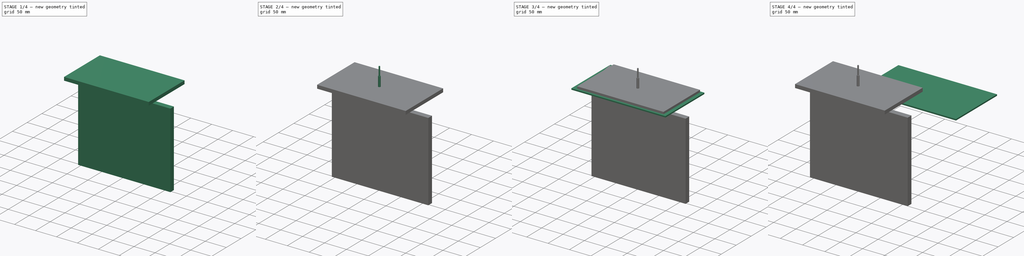
[diagram: build sequence overview — one tinted view per stage of 4, left to right]
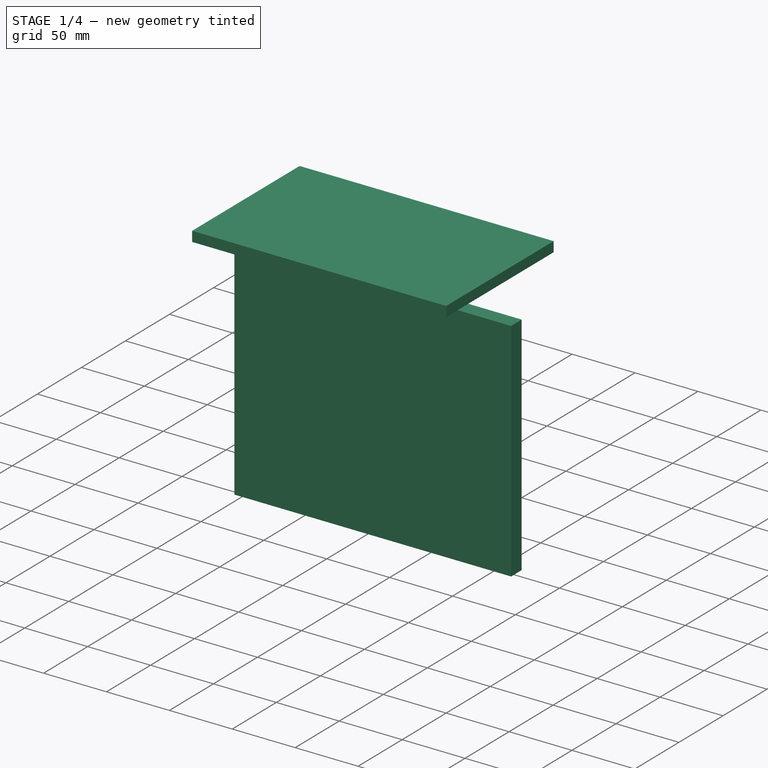
[diagram: stage 1 of 4 — iso view after this stage's code; geometry added in this stage tinted green]
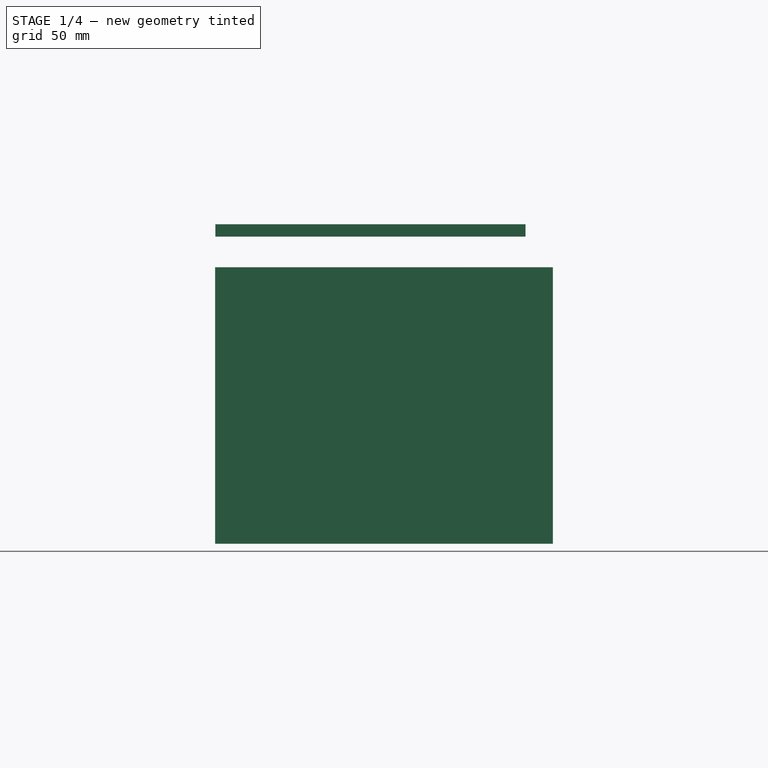
[diagram: stage 1 of 4 — front view after this stage's code; geometry added in this stage tinted green]
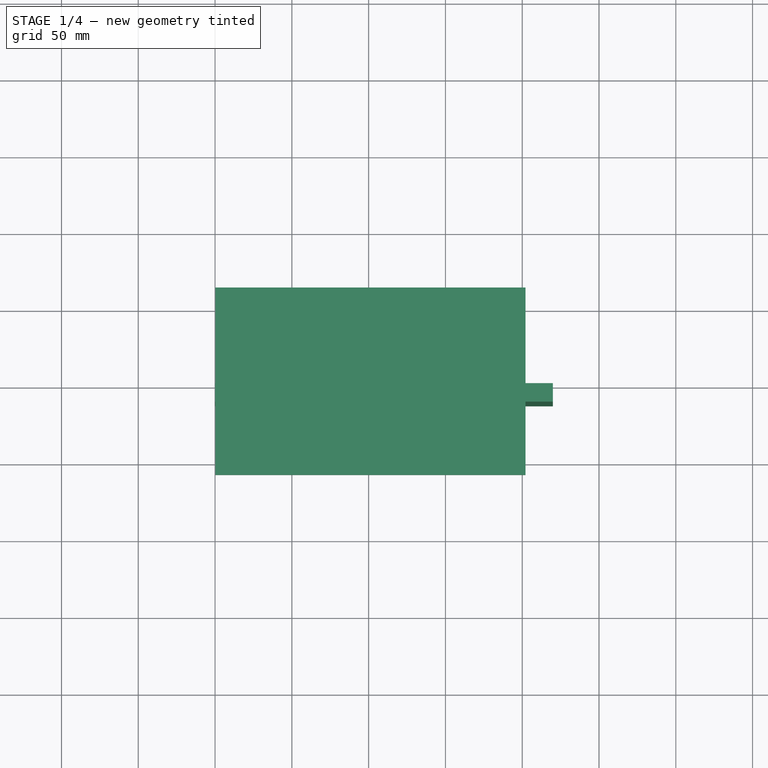
[diagram: stage 1 of 4 — top view after this stage's code; geometry added in this stage tinted green]
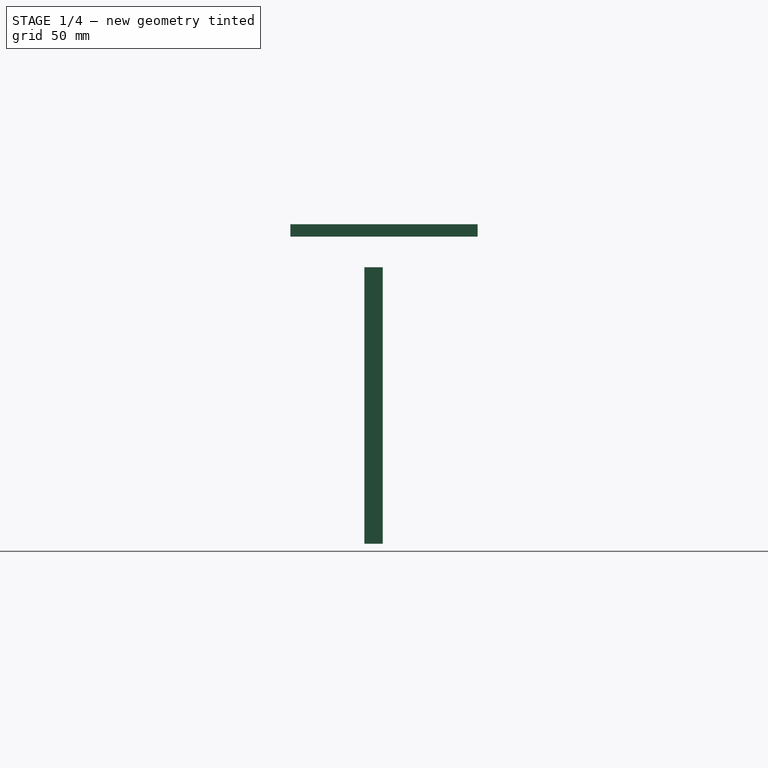
[diagram: stage 1 of 4 — right view after this stage's code; geometry added in this stage tinted green]
FCSTD DOCUMENT  (FreeCAD 0.19R24276 (Git))
Label: RD6006-Front
License: All rights reserved
LicenseURL: http://en.wikipedia.org/wiki/All_rights_reserved
objects: Sketcher::SketchObject×5, Part::FeaturePython×4, PartDesign::Pad×3, PartDesign::Body×3, Path::FeaturePython×3, PartDesign::Pocket×2, App::DocumentObjectGroup×2, App::MeasureDistance×2, Path::FeatureCompoundPython×1, App::FeaturePython×1
note: 22 computed .brp shape members not serialized (recipe doc carries the construction recipe); baked Part::Feature solids carry a one-line shape summary decoded from their .brp

FEATURE [Path::FeaturePython] TC__5mm_Endmill  label="TC: 3mm Endmill"  # Path/CAM operation (typed FeaturePython)
  HorizFeed = 0
  HorizRapid = 0
  SpindleDir = 0
  SpindleSpeed = 0
  Tool = -> ToolBit001
  ToolNumber = 1
  VertFeed = 0
  VertRapid = 0
  expr: HorizRapid = SetupSheet.HorizRapid
  expr: VertRapid = SetupSheet.VertRapid
FEATURE [App::DocumentObjectGroup] Tools
  Group = -> [TC__Default_Tool,TC__5mm_Endmill]
FEATURE [Path::FeaturePython] Job  # Path/CAM operation (typed FeaturePython)
  CycleTime = 00:00:00
  Fixtures = G54
  GeometryTolerance = 0.01
  Model = -> Model
  Operations = -> Operations
  OrderOutputBy = 0
  PostProcessor = 13
  SetupSheet = -> SetupSheet
  SplitOutput = false
  Stock = -> Stock
  Tools = -> Tools
FEATURE [Sketcher::SketchObject] Sketch003
  FullyConstrained = false
  MapMode = 5
  Placement = pos=(0,0,0) rot=(1,0,0;1.5708rad)
  Support = -> [XZ_Plane001]
  sketch-geometry (4):
    g0: LineSegment StartX=-100 StartY=-20 StartZ=0 EndX=120 EndY=-20 EndZ=0
    g1: LineSegment StartX=120 StartY=-20 StartZ=0 EndX=120 EndY=-200 EndZ=0
    g2: LineSegment StartX=120 StartY=-200 StartZ=0 EndX=-100 EndY=-200 EndZ=0
    g3: LineSegment StartX=-100 StartY=-200 StartZ=0 EndX=-100 EndY=-20 EndZ=0
  constraints (8):
    c: Coincident(g0,g1)
    c: Coincident(g1,g2)
    c: Coincident(g2,g3)
    c: Coincident(g3,g0)
    c: Horizontal(g0)
    c: Horizontal(g2)
    c: Vertical(g1)
    c: Vertical(g3)
FEATURE [PartDesign::Pad] Pad001
  Direction = (1,1,1)
  Length = 12
  Length2 = 100
  Placement = pos=(0,0,0) rot=(1,0,0;1.5708rad)
  Profile = -> Sketch003
  Type = 0
FEATURE [PartDesign::Body] Body001
  Group = -> [Sketch003,Pad001]
  Origin = -> Origin001
  Placement = pos=(-10,-61,46) rot=(0,0,1;0rad)
  Tip = -> Pad001
FEATURE [Sketcher::SketchObject] Sketch004
  FullyConstrained = false
  MapMode = 5
  Support = -> [XY_Plane002]
  sketch-geometry (4):
    g0: LineSegment StartX=-99.7927 StartY=-60.2143 StartZ=0 EndX=102.12 EndY=-60.2143 EndZ=0
    g1: LineSegment StartX=102.12 StartY=-60.2143 StartZ=0 EndX=102.12 EndY=61.7857 EndZ=0
    g2: LineSegment StartX=102.12 StartY=61.7857 StartZ=0 EndX=-99.7927 EndY=61.7857 EndZ=0
    g3: LineSegment StartX=-99.7927 StartY=61.7857 StartZ=0 EndX=-99.7927 EndY=-60.2143 EndZ=0
  constraints (9):
    c: Coincident(g0,g1)
    c: Coincident(g1,g2)
    c: Coincident(g2,g3)
    c: Coincident(g3,g0)
    c: Horizontal(g0)
    c: Horizontal(g2)
    c: Vertical(g1)
    c: Vertical(g3)
    c: DistanceY(g0,g1) = 122
FEATURE [PartDesign::Pad] Pad002
  Direction = (1,1,1)
  Length = 8
  Length2 = 100
  Profile = -> Sketch004
  Type = 0
FEATURE [PartDesign::Body] Body002
  Group = -> [Sketch004,Pad002]
  Origin = -> Origin002
  Placement = pos=(0,-1,-91) rot=(0,0,1;0rad)
  Tip = -> Pad002
FEATURE [App::MeasureDistance] Distance  label="Distance: 219,33 mm"
  Distance = 219.328
  P1 = (-109.327,-66.1387,26)
  P2 = (110,-66.462,26)
FEATURE [App::MeasureDistance] Distance001  label="Distance: 121,79 mm"
  Distance = 121.789
  P1 = (102.12,60.7857,-86.9609)
  P2 = (102.402,-61,-86.1828)
note: 2 file-system paths scrubbed to <path> (originals preserved in the JSON sidecar)
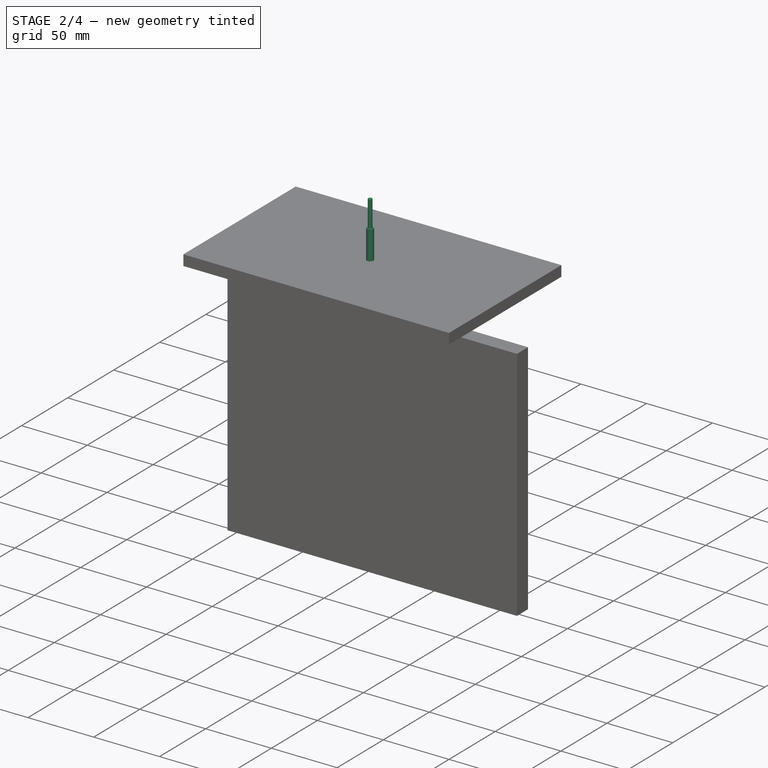
[diagram: stage 2 of 4 — iso view after this stage's code; geometry added in this stage tinted green]
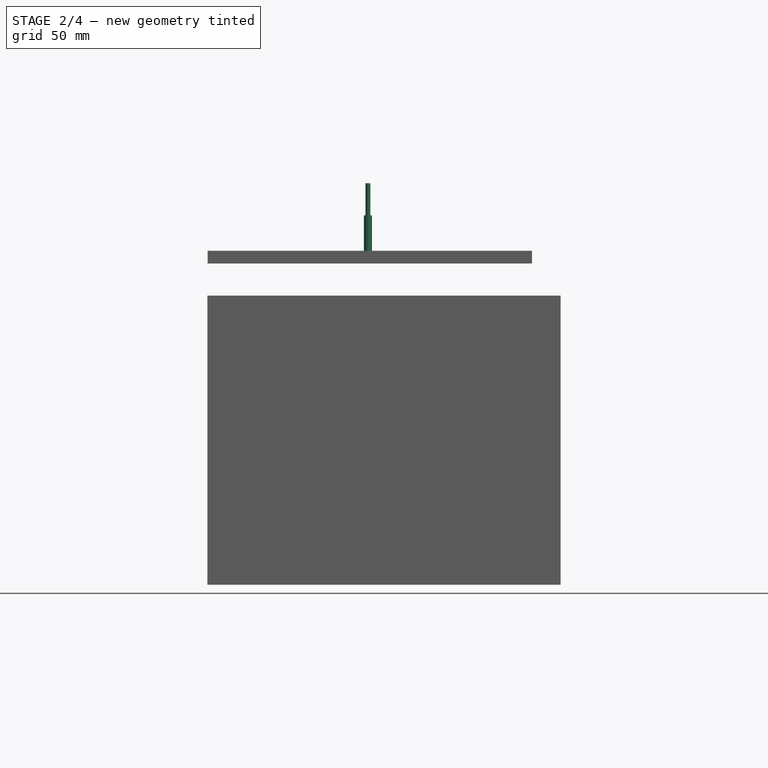
[diagram: stage 2 of 4 — front view after this stage's code; geometry added in this stage tinted green]
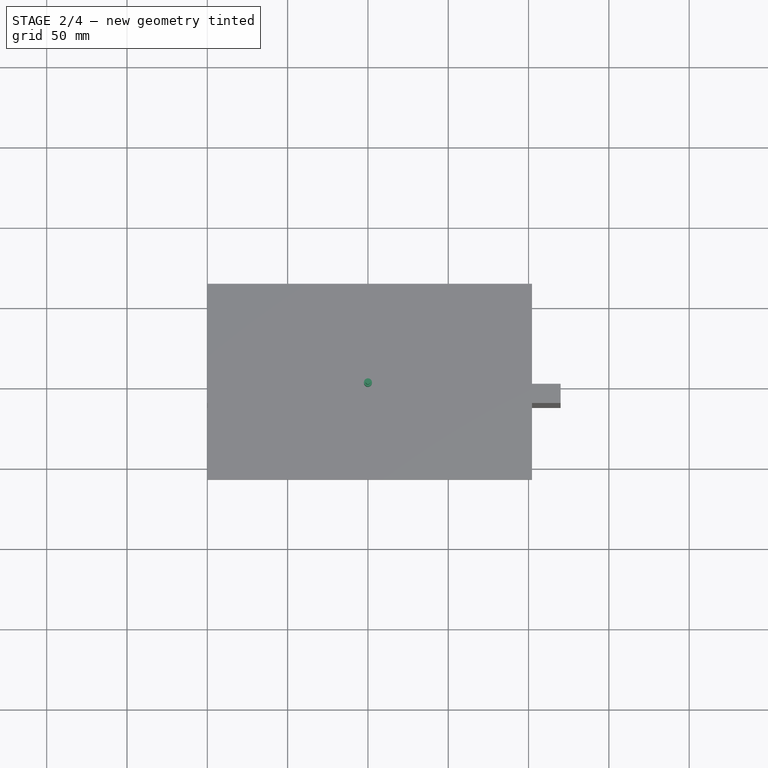
[diagram: stage 2 of 4 — top view after this stage's code; geometry added in this stage tinted green]
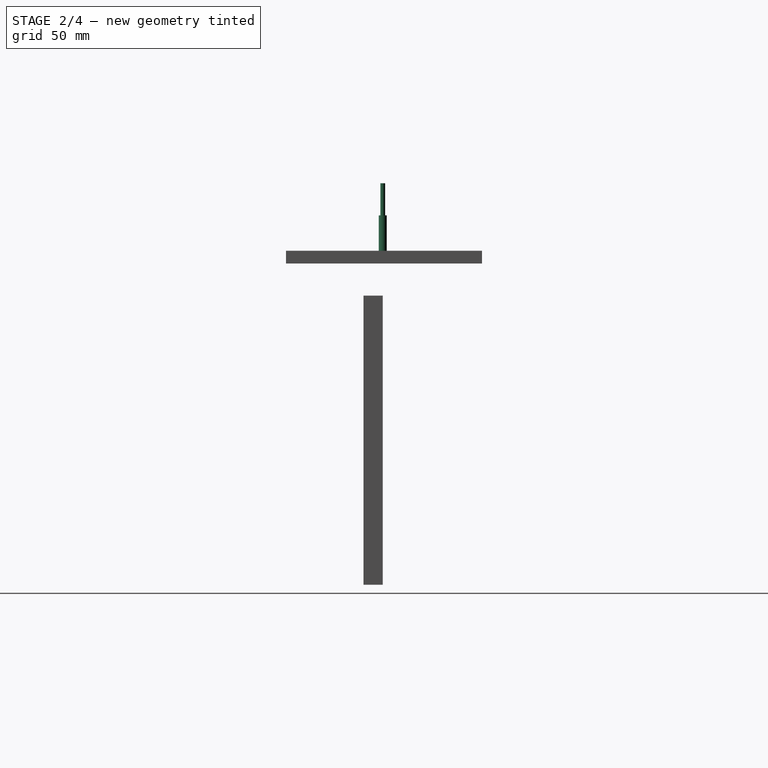
[diagram: stage 2 of 4 — right view after this stage's code; geometry added in this stage tinted green]
FEATURE [App::DocumentObjectGroup] Model
  Group = -> [Clone]
FEATURE [Part::FeaturePython] ToolBit  label="Endmill"  # Path/CAM toolbit (typed FeaturePython)
  BitPropertyNames = CuttingEdgeHeight | Diameter | Length | ShankDiameter
  BitShape = <path>
  CuttingEdgeHeight = 30
  Diameter = 5
  Length = 50
  ShankDiameter = 3
  ShapeName = endmill
FEATURE [Part::FeaturePython] ToolBit001  label="3mm Endmill"  # Path/CAM toolbit (typed FeaturePython)
  BitPropertyNames = CuttingEdgeHeight | Diameter | Length | ShankDiameter
  BitShape = <path>
  CuttingEdgeHeight = 30
  Diameter = 3
  File = <userpath>/.FreeCAD/Tools/Bit/5mm_Endmill.fctb
  Length = 50
  ShankDiameter = 3
  ShapeName = endmill
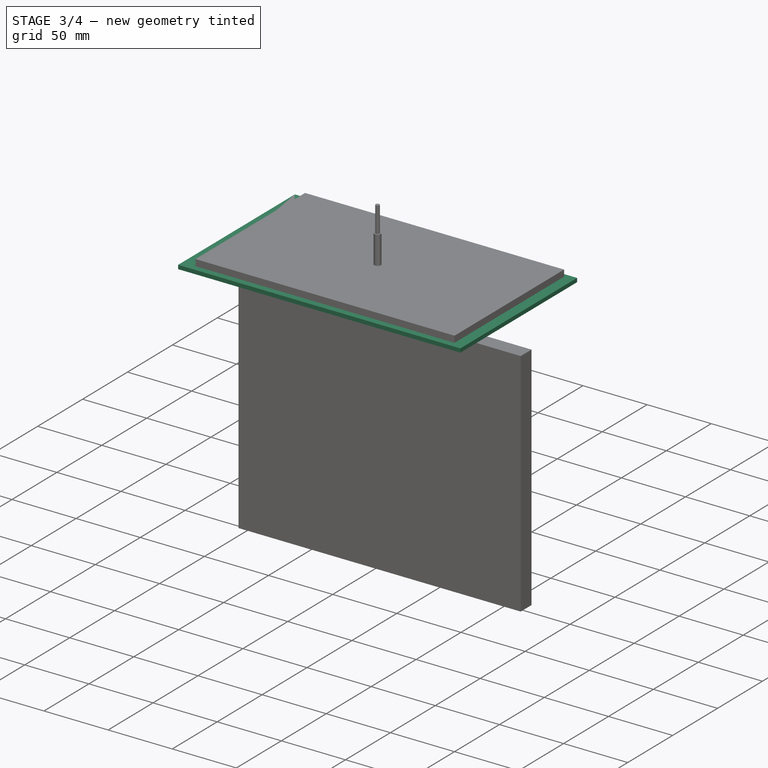
[diagram: stage 3 of 4 — iso view after this stage's code; geometry added in this stage tinted green]
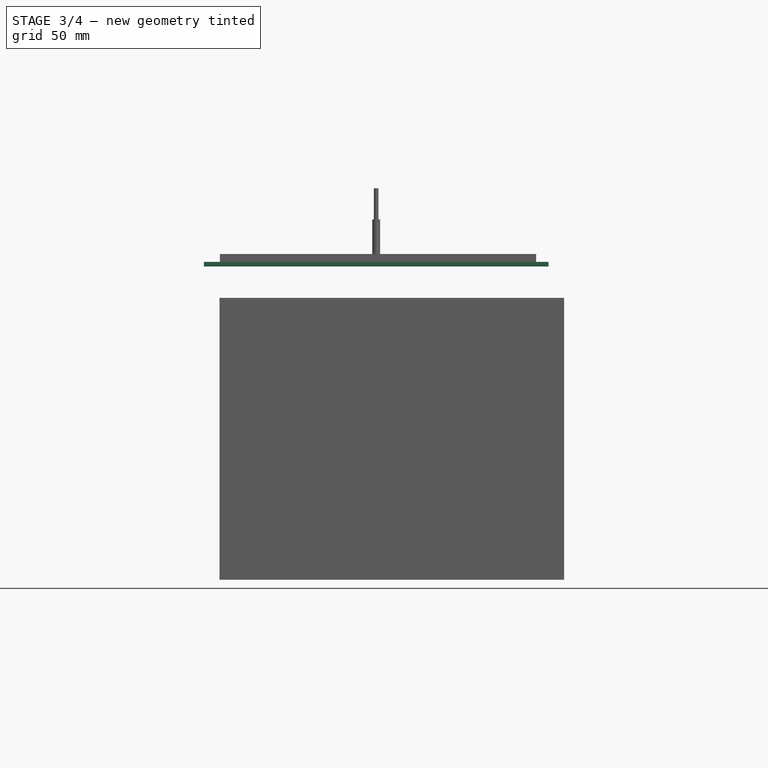
[diagram: stage 3 of 4 — front view after this stage's code; geometry added in this stage tinted green]
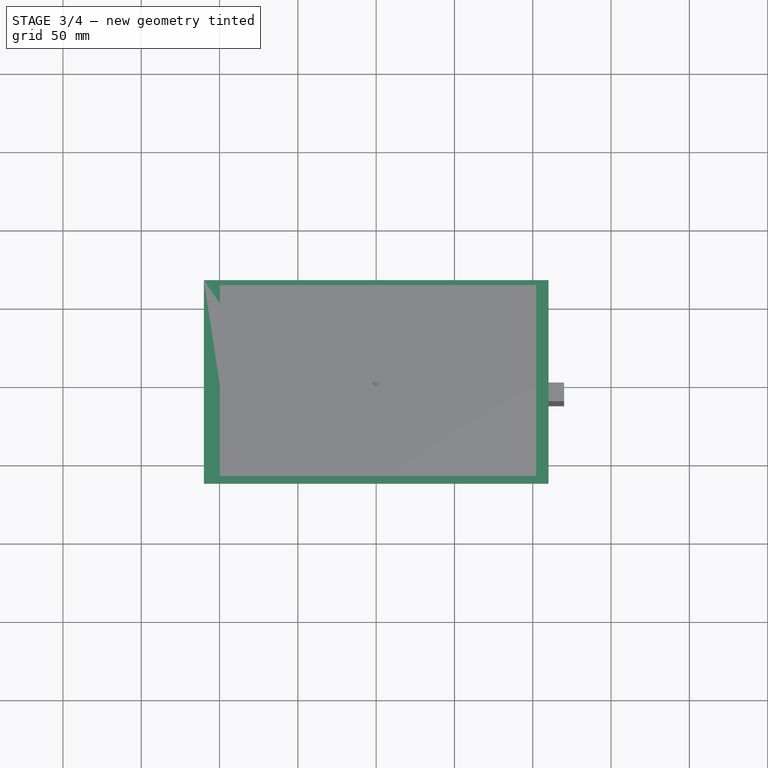
[diagram: stage 3 of 4 — top view after this stage's code; geometry added in this stage tinted green]
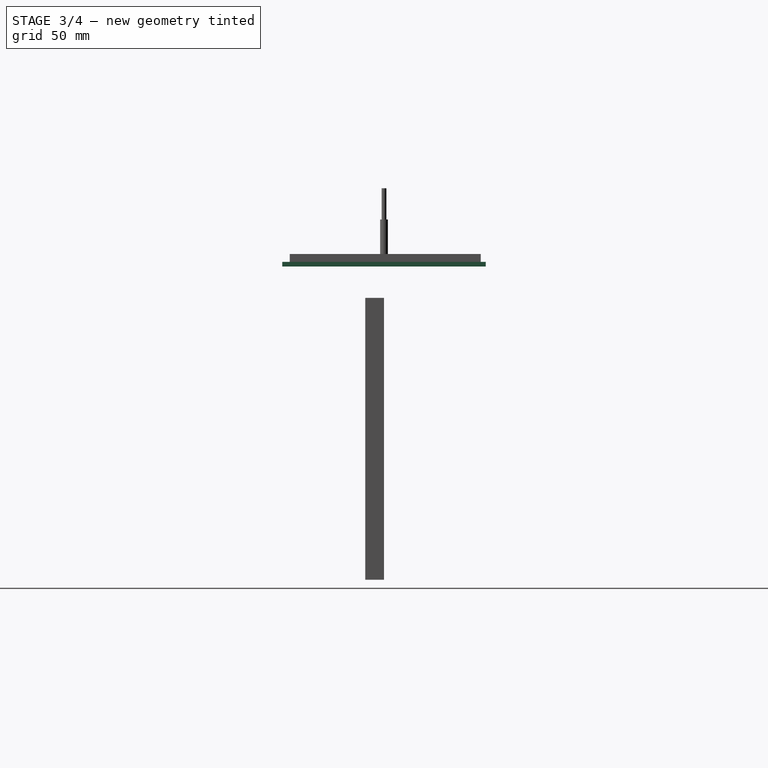
[diagram: stage 3 of 4 — right view after this stage's code; geometry added in this stage tinted green]
FEATURE [Sketcher::SketchObject] Sketch
  FullyConstrained = true
  MapMode = 5
  Support = -> [XY_Plane]
  sketch-geometry (4):
    g0: LineSegment StartX=-110 StartY=65 StartZ=0 EndX=110 EndY=65 EndZ=0
    g1: LineSegment StartX=110 StartY=65 StartZ=0 EndX=110 EndY=-65 EndZ=0
    g2: LineSegment StartX=110 StartY=-65 StartZ=0 EndX=-110 EndY=-65 EndZ=0
    g3: LineSegment StartX=-110 StartY=-65 StartZ=0 EndX=-110 EndY=65 EndZ=0
  constraints (11):
    c: Coincident(g0,g1)
    c: Coincident(g1,g2)
    c: Coincident(g2,g3)
    c: Coincident(g3,g0)
    c: Horizontal(g0)
    c: Horizontal(g2)
    c: Vertical(g1)
    c: Vertical(g3)
    c: Symmetric(g2,g0,g-1)
    c: DistanceX(g0,g-1) = 110
    c: DistanceY(g-1,g0) = 65
FEATURE [PartDesign::Pad] Pad
  Direction = (1,1,1)
  Length = 3
  Length2 = 100
  Profile = -> Sketch
  Type = 0
FEATURE [Sketcher::SketchObject] Sketch001
  FullyConstrained = true
  MapMode = 5
  Placement = pos=(0,0,3) rot=(0,0,1;0rad)
  Support = -> [Pad]
  sketch-geometry (4):
    g0: LineSegment StartX=-95 StartY=43 StartZ=0 EndX=67 EndY=43 EndZ=0
    g1: LineSegment StartX=67 StartY=43 StartZ=0 EndX=67 EndY=-34 EndZ=0
    g2: LineSegment StartX=67 StartY=-34 StartZ=0 EndX=-95 EndY=-34 EndZ=0
    g3: LineSegment StartX=-95 StartY=-34 StartZ=0 EndX=-95 EndY=43 EndZ=0
  constraints (12):
    c: Coincident(g0,g1)
    c: Coincident(g1,g2)
    c: Coincident(g2,g3)
    c: Coincident(g3,g0)
    c: Horizontal(g0)
    c: Horizontal(g2)
    c: Vertical(g1)
    c: Vertical(g3)
    c: DistanceX(g0,g0) = 162
    c: DistanceX(g0,g-1) = 95
    c: DistanceY(g1,g0) = 77
    c: DistanceY(g-1,g0) = 43
FEATURE [PartDesign::Pocket] Pocket  label="RD6006-Front"
  BaseFeature = -> Pad
  Length = 5
  Length2 = 100
  Profile = -> Sketch001
  Type = 1
FEATURE [Sketcher::SketchObject] Sketch002
  FullyConstrained = false
  MapMode = 5
  Placement = pos=(0,0,3) rot=(0,0,1;0rad)
  Support = -> [Pocket]
  sketch-geometry (4):
    g0: LineSegment StartX=77.6418 StartY=43 StartZ=0 EndX=90.6418 EndY=43 EndZ=0
    g1: LineSegment StartX=90.6418 StartY=43 StartZ=0 EndX=90.6418 EndY=16 EndZ=0
    g2: LineSegment StartX=90.6418 StartY=16 StartZ=0 EndX=77.6418 EndY=16 EndZ=0
    g3: LineSegment StartX=77.6418 StartY=16 StartZ=0 EndX=77.6418 EndY=43 EndZ=0
  constraints (11):
    c: Coincident(g0,g1)
    c: Coincident(g1,g2)
    c: Coincident(g2,g3)
    c: Coincident(g3,g0)
    c: Horizontal(g0)
    c: Horizontal(g2)
    c: Vertical(g1)
    c: Vertical(g3)
    c: DistanceX(g0,g0) = 13
    c: DistanceY(g1,g0) = 27
    c: DistanceY(g-1,g0) = 43
FEATURE [PartDesign::Pocket] Pocket001  label="Interrupteur"
  BaseFeature = -> Pocket
  Length = 5
  Length2 = 100
  Profile = -> Sketch002
  Type = 1
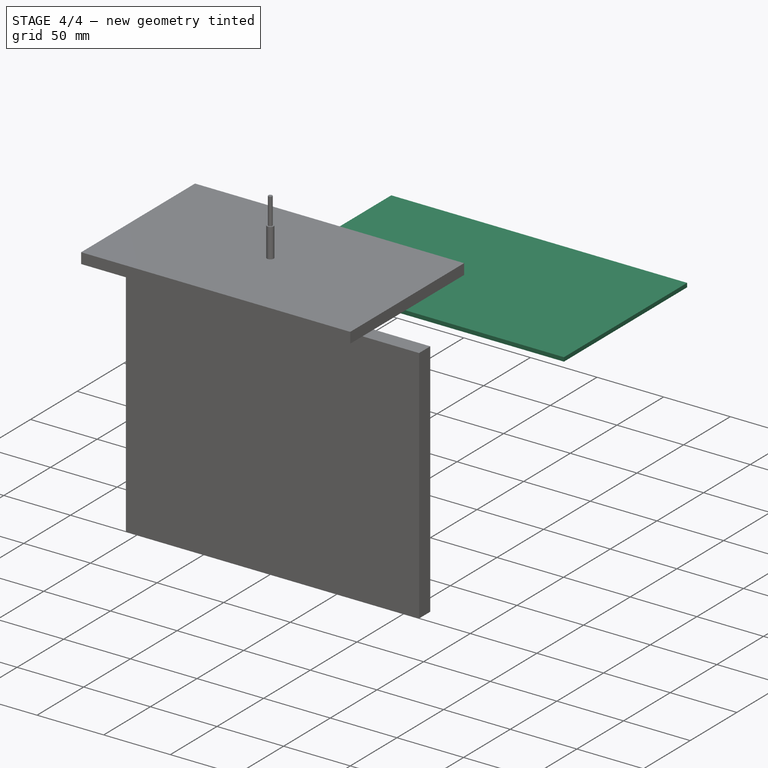
[diagram: stage 4 of 4 — iso view after this stage's code; geometry added in this stage tinted green]
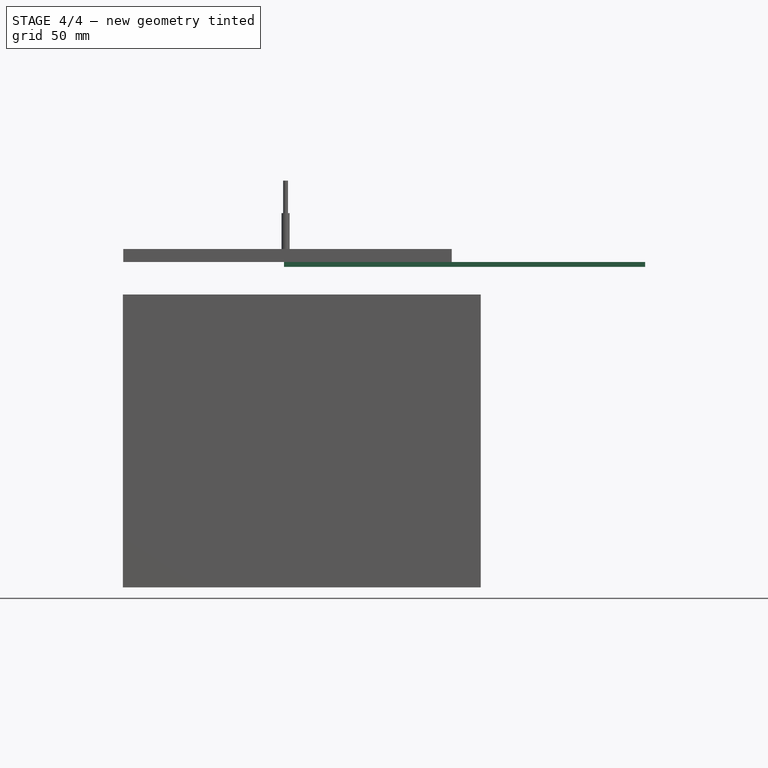
[diagram: stage 4 of 4 — front view after this stage's code; geometry added in this stage tinted green]
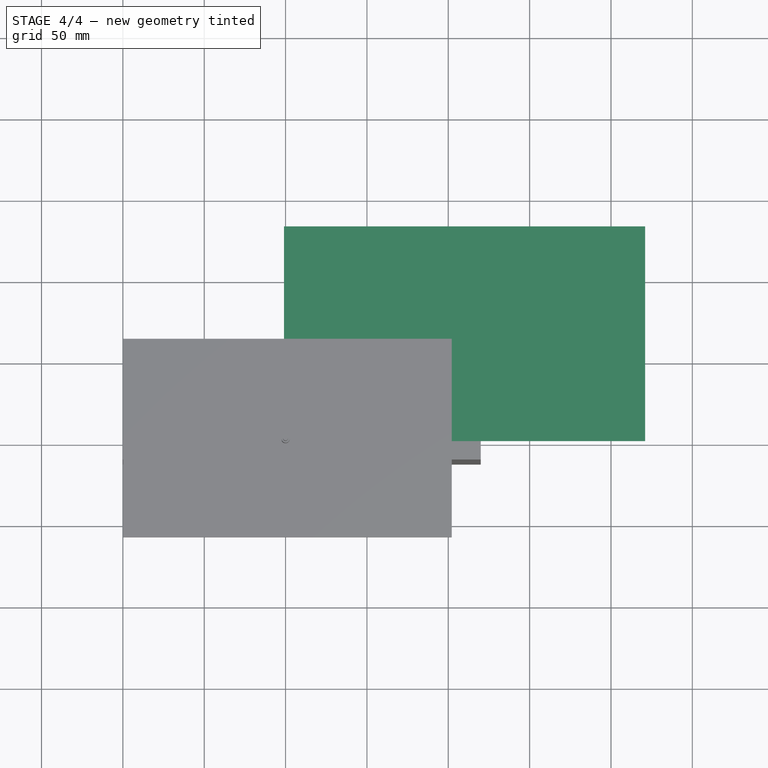
[diagram: stage 4 of 4 — top view after this stage's code; geometry added in this stage tinted green]
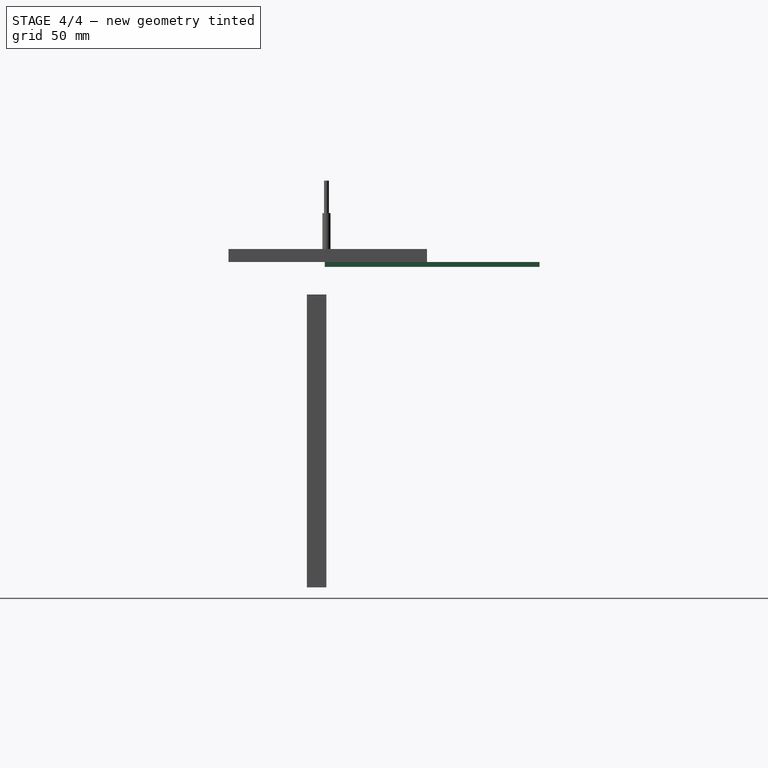
[diagram: stage 4 of 4 — right view after this stage's code; geometry added in this stage tinted green]
FEATURE [PartDesign::Body] Body
  Group = -> [Sketch,Pad,Sketch001,Pocket,Sketch002,Pocket001]
  Origin = -> Origin
  Placement = pos=(0,0,0) rot=(1,0,0;5.93412rad)
  Tip = -> Pocket001
FEATURE [Path::FeatureCompoundPython] Operations  # Path/CAM operation (typed FeaturePython)
  UsePlacements = false
FEATURE [App::FeaturePython] SetupSheet  # Path/CAM operation (typed FeaturePython)
  ClearanceHeightExpression = OpStockZMax+SetupSheet.ClearanceHeightOffset
  ClearanceHeightOffset = 5
  CoolantMode = 0
  CoolantModes = None | Flood | Mist
  FinalDepthExpression = OpFinalDepth
  HorizRapid = 0
  SafeHeightExpression = OpStockZMax+SetupSheet.SafeHeightOffset
  SafeHeightOffset = 3
  StartDepthExpression = OpStartDepth
  StepDownExpression = OpToolDiameter
  VertRapid = 0
FEATURE [Part::FeaturePython] Clone  label="Model-Body"  # Draft clone (typed FeaturePython)
  AttacherType = Attacher::AttachEngine3D
  Fuse = false
  Objects = -> [Body]
  PathResource = Model
  Placement = pos=(110,65,-3) rot=(0,0,1;0rad)
  Scale = (1,1,1)
FEATURE [Path::FeaturePython] TC__Default_Tool  label="TC: Default Tool"  # Path/CAM operation (typed FeaturePython)
  HorizFeed = 0
  HorizRapid = 0
  SpindleDir = 0
  SpindleSpeed = 0
  Tool = -> ToolBit
  ToolNumber = 1
  VertFeed = 0
  VertRapid = 0
  expr: HorizRapid = SetupSheet.HorizRapid
  expr: VertRapid = SetupSheet.VertRapid
FEATURE [Part::FeaturePython] Stock  # WARN: FeaturePython — macro-defined, semantics opaque (R4)
  Base = -> Model
  ExtXneg = 1
  ExtXpos = 1
  ExtYneg = 1
  ExtYpos = 1
  ExtZneg = 0
  ExtZpos = 0
  Placement = pos=(0,0,-3) rot=(0,0,1;0rad)
  StockType = FromBase
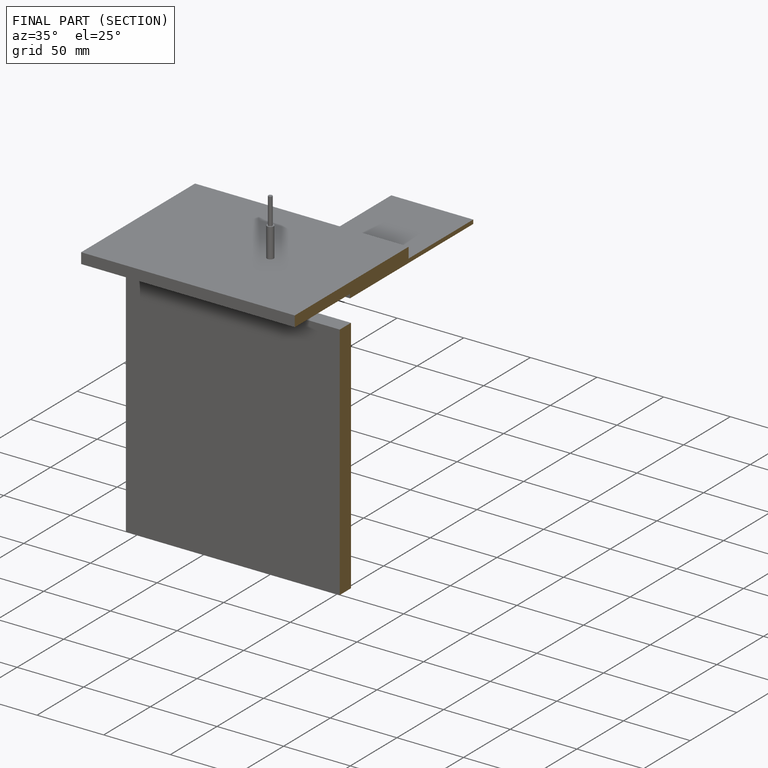
[diagram: finished part — half-section view (interior)]
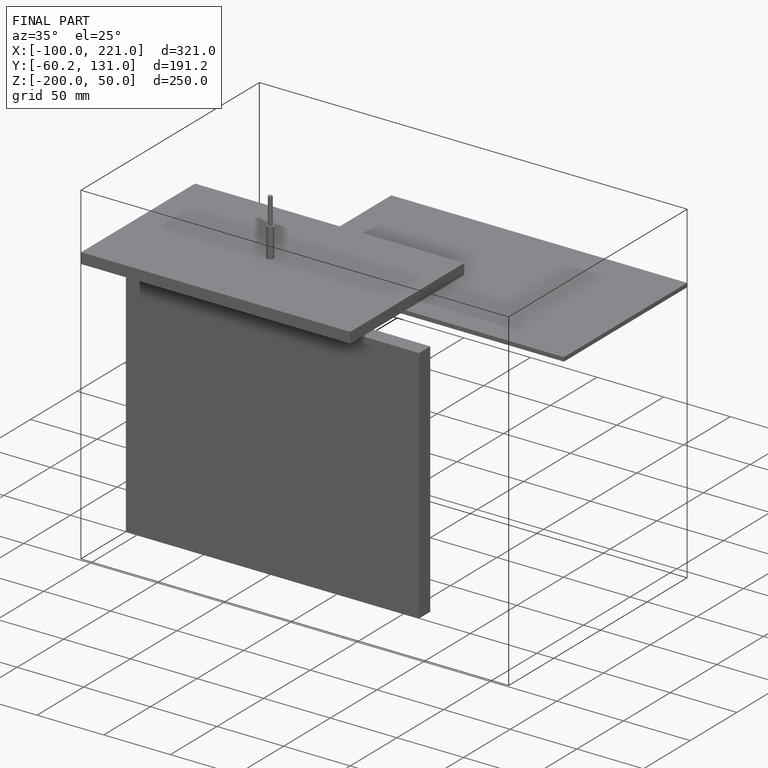
[diagram: finished part — iso view with bounding-box wireframe]
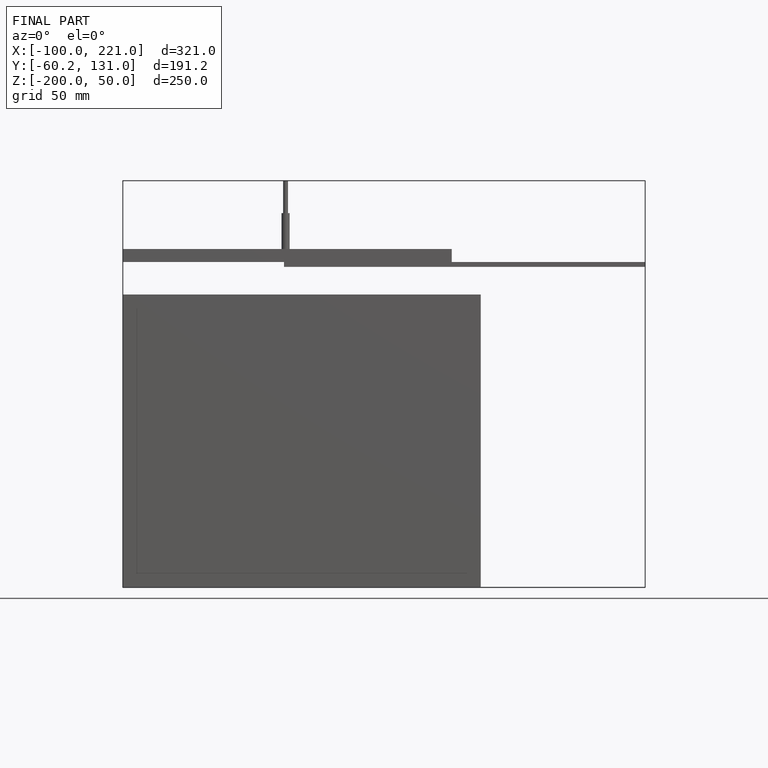
[diagram: finished part — front view with bounding-box wireframe]
